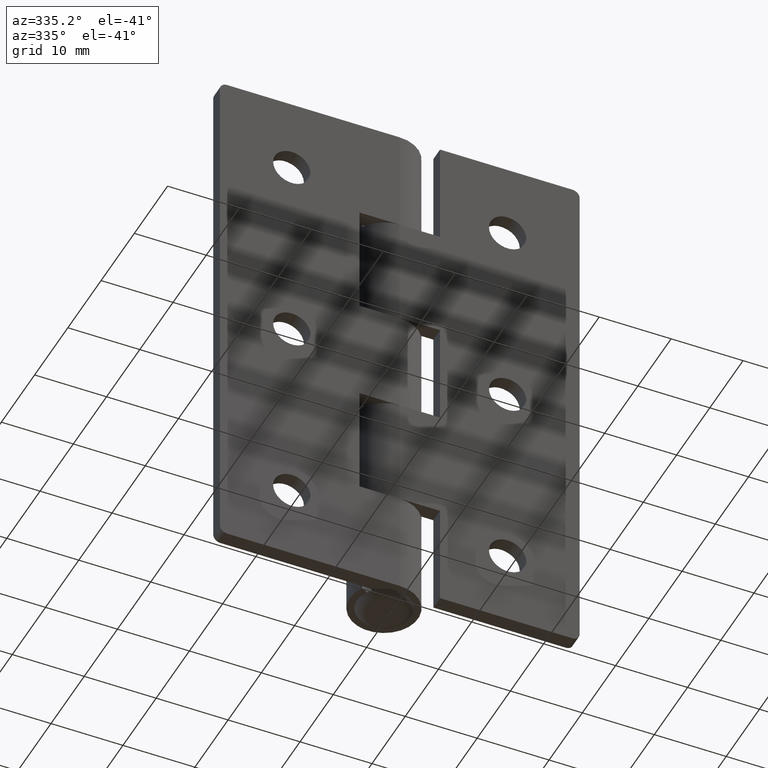
[diagram: clean part render]
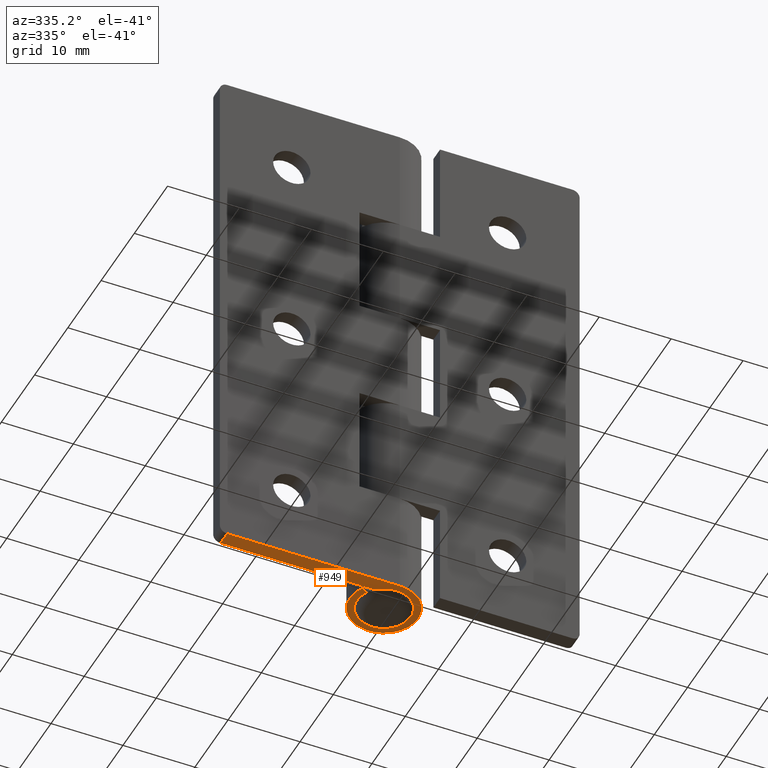
[diagram: same view with one face highlighted and labeled with its STEP entity id]
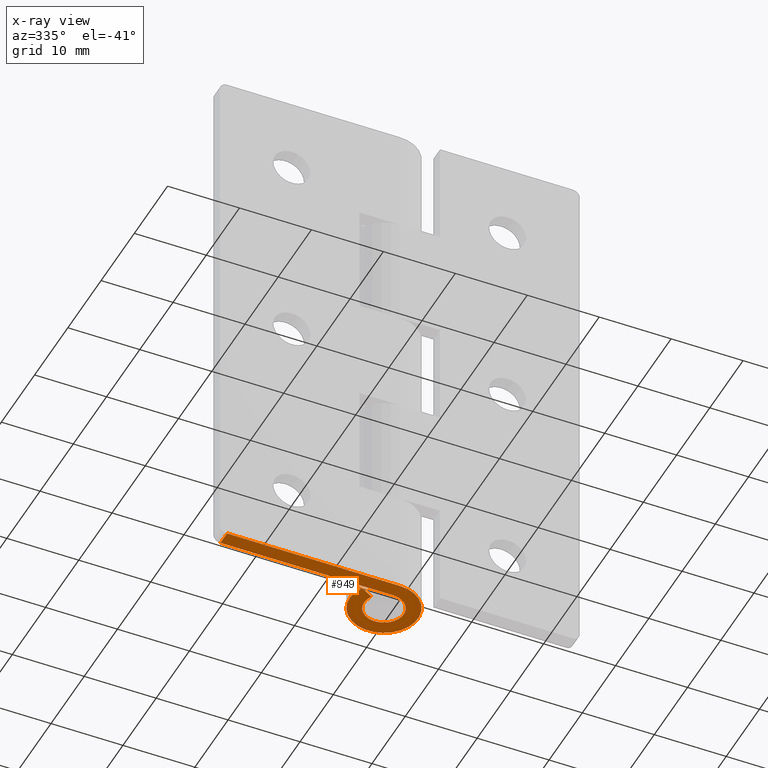
[diagram: x-ray of the same camera — body ghosted, the highlighted face saturated]
A machine part, auxiliary view. The second image highlights one B-rep face of the part: STEP entity #949.
The next image is the same camera in x-ray: the body ghosted, the highlighted face saturated — about 0% of this face is hidden behind the body in this view.
In plain terms, the highlighted planar face has unit normal (0, 0, 1).
Its self-contained STEP definition (entity closure, byte-faithful):
#54=PLANE('',#1010);
#87=FACE_OUTER_BOUND('',#142,.T.);
#142=EDGE_LOOP('',(#667,#668,#669,#670,#671,#672));
#219=LINE('',#1416,#305);
#221=LINE('',#1422,#307);
#222=LINE('',#1426,#308);
#223=LINE('',#1429,#309);
#305=VECTOR('',#1118,2.);
#307=VECTOR('',#1124,24.);
#308=VECTOR('',#1127,2.);
#309=VECTOR('',#1130,24.);
#393=CIRCLE('',#1011,2.75);
#394=CIRCLE('',#1012,4.75);
#438=VERTEX_POINT('',#1413);
#439=VERTEX_POINT('',#1415);
#441=VERTEX_POINT('',#1421);
#442=VERTEX_POINT('',#1423);
#443=VERTEX_POINT('',#1425);
#444=VERTEX_POINT('',#1427);
#532=EDGE_CURVE('',#438,#439,#219,.T.);
#535=EDGE_CURVE('',#438,#441,#221,.T.);
#536=EDGE_CURVE('',#441,#442,#393,.T.);
#537=EDGE_CURVE('',#442,#443,#222,.T.);
#538=EDGE_CURVE('',#443,#444,#394,.T.);
#539=EDGE_CURVE('',#444,#439,#223,.T.);
#667=ORIENTED_EDGE('',*,*,#532,.F.);
#668=ORIENTED_EDGE('',*,*,#535,.T.);
#669=ORIENTED_EDGE('',*,*,#536,.T.);
#670=ORIENTED_EDGE('',*,*,#537,.T.);
#671=ORIENTED_EDGE('',*,*,#538,.T.);
#672=ORIENTED_EDGE('',*,*,#539,.T.);
#949=ADVANCED_FACE('',(#87),#54,.F.);
#1010=AXIS2_PLACEMENT_3D('',#1420,#1122,#1123);
#1011=AXIS2_PLACEMENT_3D('',#1424,#1125,#1126);
#1012=AXIS2_PLACEMENT_3D('',#1428,#1128,#1129);
#1118=DIRECTION('',(0.,-1.,0.));
#1122=DIRECTION('center_axis',(0.,0.,1.));
#1123=DIRECTION('ref_axis',(1.,0.,0.));
#1124=DIRECTION('',(1.,3.99680288865056E-16,0.));
#1125=DIRECTION('center_axis',(0.,0.,1.));
#1126=DIRECTION('ref_axis',(0.,1.,0.));
#1127=DIRECTION('',(-0.866025403784438,-0.5,0.));
#1128=DIRECTION('center_axis',(0.,0.,-1.));
#1129=DIRECTION('ref_axis',(-0.815364914991035,-0.578947368421052,0.));
#1130=DIRECTION('',(-1.,-2.99760216648792E-16,0.));
#1413=CARTESIAN_POINT('',(-24.,1.99999999999999,-37.5));
#1415=CARTESIAN_POINT('',(-24.,-7.19424519957101E-15,-37.5));
#1416=CARTESIAN_POINT('',(-24.,1.65167028911566,-37.5));
#1420=CARTESIAN_POINT('Origin',(-1.57778474548746,1.30334057823132,-37.5));
#1421=CARTESIAN_POINT('',(-3.67394039744207E-16,2.,-37.5));
#1422=CARTESIAN_POINT('',(0.,2.,-37.5));
#1423=CARTESIAN_POINT('',(-2.3815698604072,3.375,-37.5));
#1424=CARTESIAN_POINT('Origin',(-3.67394039744207E-16,4.75,-37.5));
#1425=CARTESIAN_POINT('',(-4.11362066797608,2.375,-37.5));
#1426=CARTESIAN_POINT('',(-4.11362066797608,2.375,-37.5));
#1427=CARTESIAN_POINT('',(0.,0.,-37.5));
#1428=CARTESIAN_POINT('Origin',(-3.67394039744207E-16,4.75,-37.5));
#1429=CARTESIAN_POINT('',(-25.,-7.49400541621981E-15,-37.5));